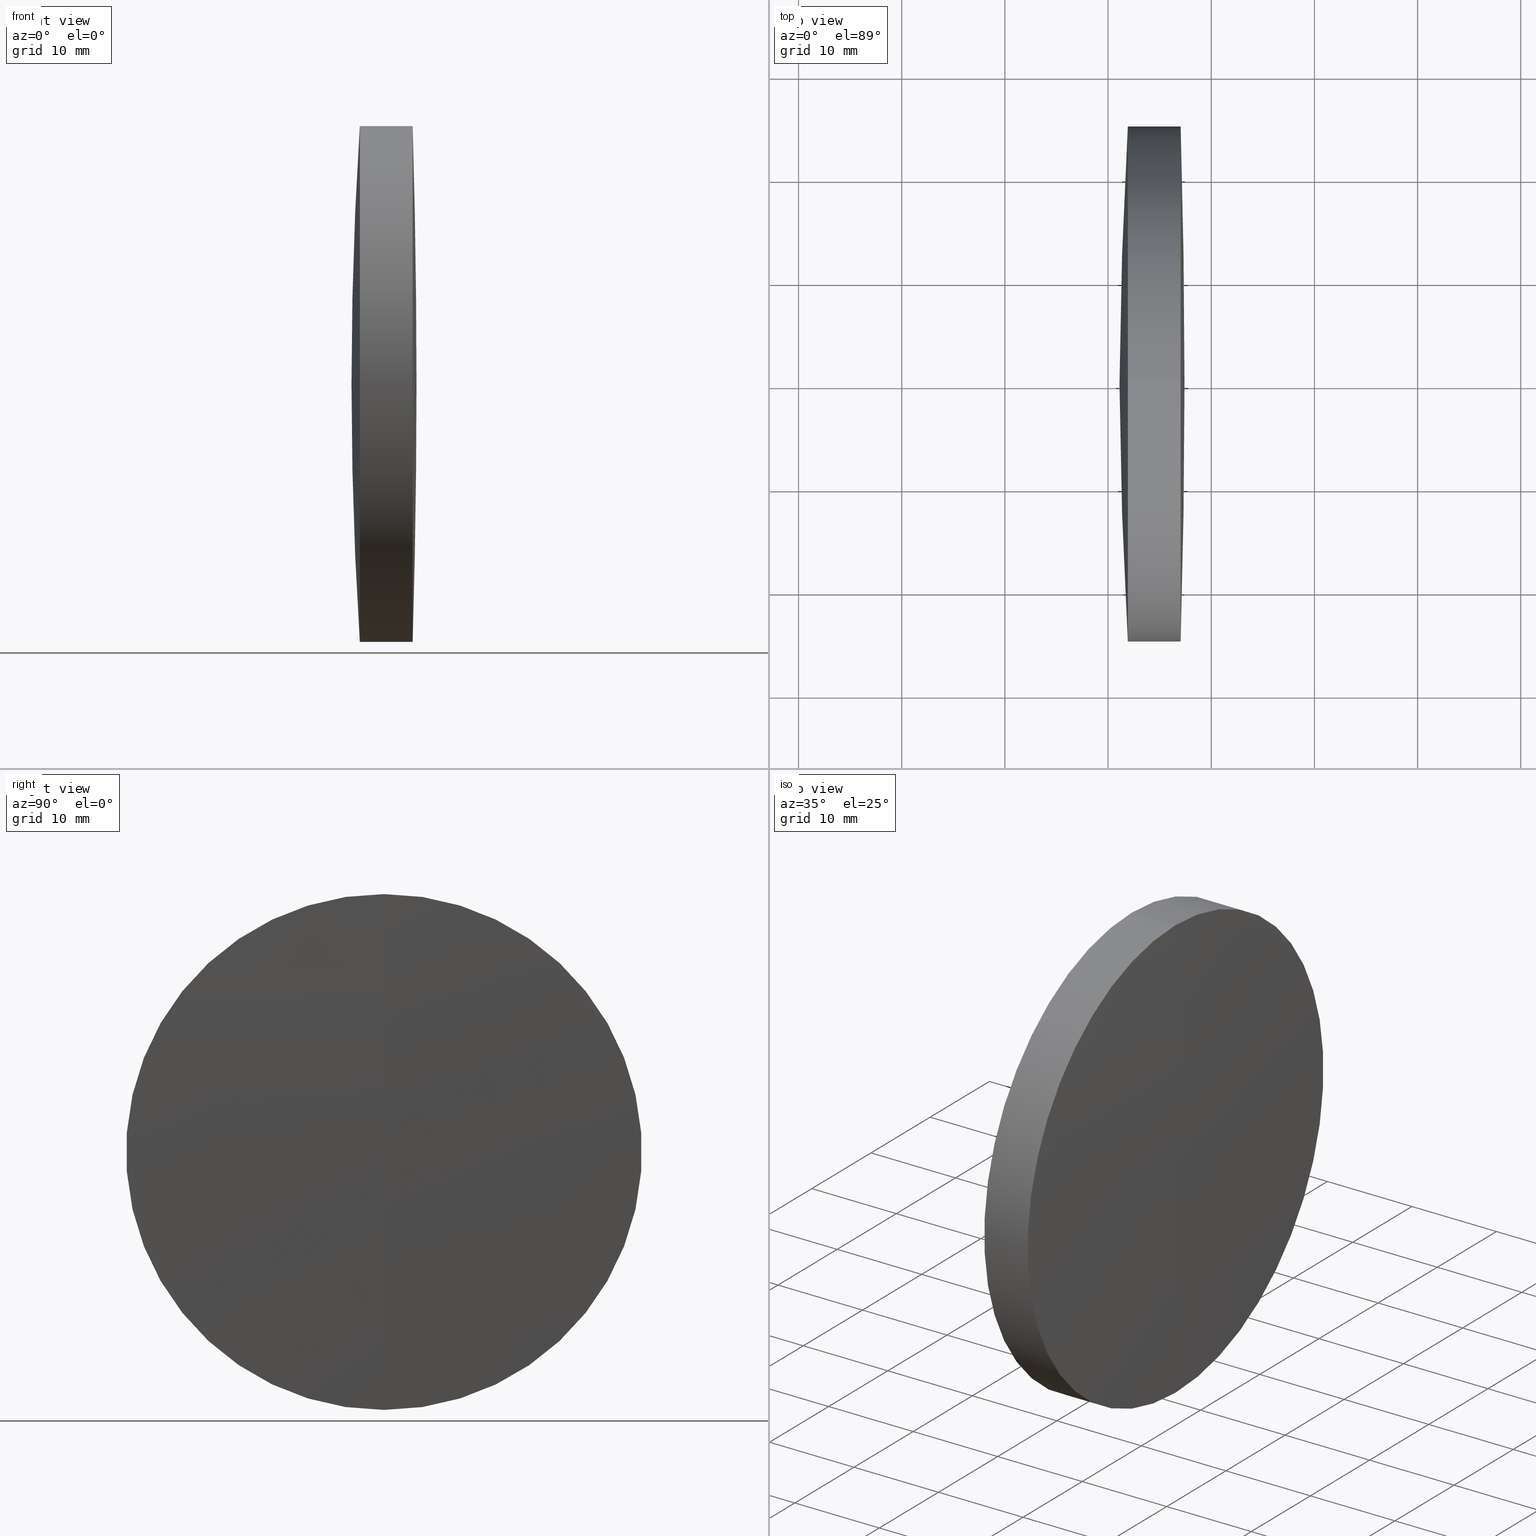
[diagram: canonical four-view strip — front | top / right | iso, engineering-drawing reading convention]
A machine part, canonical four-view strip (front | top / right | iso — engineering-drawing reading convention). The complete STEP part file that produces these views, byte-faithful:
ISO-10303-21;
HEADER;
FILE_DESCRIPTION (( 'STEP AP214' ),
    '1' );
FILE_NAME ('145083.STEP',
    '2019-05-16T05:57:50',
    ( 'user' ),
    ( '΢���й�' ),
    'SwSTEP 2.0',
    'SolidWorks 2016',
    '' );
FILE_SCHEMA (( 'AUTOMOTIVE_DESIGN' ));
ENDSEC;

DATA;
#1 = DIRECTION ( 'NONE',  ( 0.0000000000000000000, 0.0000000000000000000, 1.000000000000000000 ) ) ;
#2 = ORIENTED_EDGE ( 'NONE', *, *, #39, .F. ) ;
#3 = PRESENTATION_LAYER_ASSIGNMENT (  '', '', ( #273 ) ) ;
#4 = AXIS2_PLACEMENT_3D ( 'NONE', #80, #31, #322 ) ;
#5 = DIRECTION ( 'NONE',  ( 0.0000000000000000000, 1.000000000000000000, 0.0000000000000000000 ) ) ;
#6 = DIRECTION ( 'NONE',  ( -1.000000000000000000, -0.0000000000000000000, -0.0000000000000000000 ) ) ;
#7 = ADVANCED_FACE ( 'NONE', ( #203 ), #276, .T. ) ;
#8 = ORIENTED_EDGE ( 'NONE', *, *, #206, .F. ) ;
#9 = VECTOR ( 'NONE', #6, 1000.000000000000000 ) ;
#10 = ORIENTED_EDGE ( 'NONE', *, *, #87, .T. ) ;
#11 = CARTESIAN_POINT ( 'NONE',  ( 291.9150182122907000, 3.061616997868380700E-015, -25.00000000000035900 ) ) ;
#12 = DIRECTION ( 'NONE',  ( 0.0000000000000000000, 0.0000000000000000000, 1.000000000000000000 ) ) ;
#13 = LINE ( 'NONE', #255, #82 ) ;
#14 = COLOUR_RGB ( '',1.000000000000000000, 1.000000000000000000, 1.000000000000000000 ) ;
#15 = CARTESIAN_POINT ( 'NONE',  ( 293.6613078278429600, 3.061616997868389000E-015, -25.00000000000005000 ) ) ;
#16 = ORIENTED_EDGE ( 'NONE', *, *, #216, .T. ) ;
#17 = ORIENTED_EDGE ( 'NONE', *, *, #44, .T. ) ;
#18 =( NAMED_UNIT ( * ) SI_UNIT ( $, .STERADIAN. ) SOLID_ANGLE_UNIT ( ) );
#19 = DIRECTION ( 'NONE',  ( 0.0000000000000000000, 0.0000000000000000000, -1.000000000000000000 ) ) ;
#20 = CYLINDRICAL_SURFACE ( 'NONE', #282, 25.00000000000005000 ) ;
#21 = AXIS2_PLACEMENT_3D ( 'NONE', #281, #174, #295 ) ;
#22 = DIRECTION ( 'NONE',  ( 0.0000000000000000000, 0.0000000000000000000, 1.000000000000000000 ) ) ;
#23 = ORIENTED_EDGE ( 'NONE', *, *, #157, .F. ) ;
#24 = EDGE_LOOP ( 'NONE', ( #217, #75, #70, #23 ) ) ;
#25 = FILL_AREA_STYLE ('',( #136 ) ) ;
#26 = SPHERICAL_SURFACE ( 'NONE', #210, 387.7020000000000000 ) ;
#27 = CLOSED_SHELL ( 'NONE', ( #346, #220, #332, #110, #204, #115 ) ) ;
#28 = LINE ( 'NONE', #209, #122 ) ;
#29 = SPHERICAL_SURFACE ( 'NONE', #243, 840.6970000000000000 ) ;
#30 = FACE_OUTER_BOUND ( 'NONE', #328, .T. ) ;
#31 = DIRECTION ( 'NONE',  ( -1.000000000000000000, -0.0000000000000000000, -0.0000000000000000000 ) ) ;
#32 = ORIENTED_EDGE ( 'NONE', *, *, #343, .T. ) ;
#33 = ADVANCED_FACE ( 'NONE', ( #275 ), #29, .T. ) ;
#34 = EDGE_CURVE ( 'NONE', #109, #108, #173, .T. ) ;
#35 = DIRECTION ( 'NONE',  ( 0.0000000000000000000, 1.000000000000000000, 0.0000000000000000000 ) ) ;
#36 = CIRCLE ( 'NONE', #4, 24.99999999999984400 ) ;
#37 = DIRECTION ( 'NONE',  ( -1.000000000000000000, -0.0000000000000000000, -0.0000000000000000000 ) ) ;
#38 = ORIENTED_EDGE ( 'NONE', *, *, #206, .T. ) ;
#39 = EDGE_CURVE ( 'NONE', #251, #142, #306, .T. ) ;
#40 = CARTESIAN_POINT ( 'NONE',  ( 0.0000000000000000000, 0.0000000000000000000, 0.0000000000000000000 ) ) ;
#41 =( NAMED_UNIT ( * ) PLANE_ANGLE_UNIT ( ) SI_UNIT ( $, .RADIAN. ) );
#42 = EDGE_CURVE ( 'NONE', #109, #92, #91, .T. ) ;
#43 = CIRCLE ( 'NONE', #172, 24.99999999999932500 ) ;
#44 = EDGE_CURVE ( 'NONE', #154, #258, #221, .T. ) ;
#45 =( GEOMETRIC_REPRESENTATION_CONTEXT ( 3 ) GLOBAL_UNCERTAINTY_ASSIGNED_CONTEXT ( ( #304 ) ) GLOBAL_UNIT_ASSIGNED_CONTEXT ( ( #50, #268, #18 ) ) REPRESENTATION_CONTEXT ( 'NONE', 'WORKASPACE' ) );
#46 = CARTESIAN_POINT ( 'NONE',  ( 293.6613078278429600, 0.0000000000000000000, 0.0000000000000000000 ) ) ;
#47 = ORIENTED_EDGE ( 'NONE', *, *, #42, .T. ) ;
#48 = ORIENTED_EDGE ( 'NONE', *, *, #139, .F. ) ;
#49 = SURFACE_STYLE_FILL_AREA ( #269 ) ;
#50 =( LENGTH_UNIT ( ) NAMED_UNIT ( * ) SI_UNIT ( .MILLI., .METRE. ) );
#51 = CARTESIAN_POINT ( 'NONE',  ( 297.4081471606919500, 0.0000000000000000000, 5.147784450513912500E-014 ) ) ;
#52 = EDGE_LOOP ( 'NONE', ( #233, #17, #48 ) ) ;
#53 = ORIENTED_EDGE ( 'NONE', *, *, #192, .F. ) ;
#54 = PRESENTATION_STYLE_ASSIGNMENT (( #147 ) ) ;
#55 = DIRECTION ( 'NONE',  ( 0.0000000000000000000, 1.000000000000000000, 0.0000000000000000000 ) ) ;
#56 = FACE_OUTER_BOUND ( 'NONE', #52, .T. ) ;
#57 = AXIS2_PLACEMENT_3D ( 'NONE', #90, #262, #190 ) ;
#58 = CARTESIAN_POINT ( 'NONE',  ( 124.5233095260452400, 0.0000000000000000000, 25.00000000000005000 ) ) ;
#59 = ADVANCED_FACE ( 'NONE', ( #171 ), #102, .F. ) ;
#60 = CARTESIAN_POINT ( 'NONE',  ( 39.55514716069188800, 0.0000000000000000000, 3.293916324347987600E-013 ) ) ;
#61 = DIRECTION ( 'NONE',  ( 0.0000000000000000000, -1.224646799147353200E-016, 1.000000000000000000 ) ) ;
#62 = CLOSED_SHELL ( 'NONE', ( #33, #162, #59, #135, #7, #83 ) ) ;
#63 = AXIS2_PLACEMENT_3D ( 'NONE', #277, #73, #232 ) ;
#64 = CARTESIAN_POINT ( 'NONE',  ( 39.55514716069188800, 0.0000000000000000000, 3.293916324347987600E-013 ) ) ;
#65 = AXIS2_PLACEMENT_3D ( 'NONE', #46, #163, #253 ) ;
#66 = DIRECTION ( 'NONE',  ( 0.0000000000000000000, 1.000000000000000000, 0.0000000000000000000 ) ) ;
#67 = CIRCLE ( 'NONE', #127, 25.00000000000005000 ) ;
#68 = SURFACE_SIDE_STYLE ('',( #201 ) ) ;
#69 = DIRECTION ( 'NONE',  ( -1.000000000000000000, -0.0000000000000000000, -0.0000000000000000000 ) ) ;
#70 = ORIENTED_EDGE ( 'NONE', *, *, #343, .F. ) ;
#71 = CIRCLE ( 'NONE', #85, 255.3329999999999100 ) ;
#72 =( NAMED_UNIT ( * ) SI_UNIT ( $, .STERADIAN. ) SOLID_ANGLE_UNIT ( ) );
#73 = DIRECTION ( 'NONE',  ( 0.0000000000000000000, -1.000000000000000000, 0.0000000000000000000 ) ) ;
#74 = AXIS2_PLACEMENT_3D ( 'NONE', #60, #55, #334 ) ;
#75 = ORIENTED_EDGE ( 'NONE', *, *, #165, .T. ) ;
#76 = FACE_OUTER_BOUND ( 'NONE', #242, .T. ) ;
#77 = FACE_OUTER_BOUND ( 'NONE', #340, .T. ) ;
#78 = STYLED_ITEM ( 'NONE', ( #187 ), #134 ) ;
#79 = CARTESIAN_POINT ( 'NONE',  ( 293.6613078278429600, 0.0000000000000000000, 25.00000000000005000 ) ) ;
#80 = CARTESIAN_POINT ( 'NONE',  ( 293.6613078278429600, 0.0000000000000000000, 0.0000000000000000000 ) ) ;
#81 = CARTESIAN_POINT ( 'NONE',  ( 297.0363495728295200, 0.0000000000000000000, 0.0000000000000000000 ) ) ;
#82 = VECTOR ( 'NONE', #150, 1000.000000000000000 ) ;
#83 = ADVANCED_FACE ( 'NONE', ( #30 ), #293, .T. ) ;
#84 = ORIENTED_EDGE ( 'NONE', *, *, #169, .T. ) ;
#85 = AXIS2_PLACEMENT_3D ( 'NONE', #184, #198, #61 ) ;
#86 = CARTESIAN_POINT ( 'NONE',  ( 678.8101471606918300, 0.0000000000000000000, -3.757270790707711000E-013 ) ) ;
#87 = EDGE_CURVE ( 'NONE', #280, #230, #324, .T. ) ;
#88 = CARTESIAN_POINT ( 'NONE',  ( 293.6613078278429600, 3.061616997868377100E-015, -24.99999999999962700 ) ) ;
#89 = AXIS2_PLACEMENT_3D ( 'NONE', #256, #236, #182 ) ;
#90 = CARTESIAN_POINT ( 'NONE',  ( -543.2888528393081100, 0.0000000000000000000, 0.0000000000000000000 ) ) ;
#91 = CIRCLE ( 'NONE', #89, 840.6970000000000000 ) ;
#92 = VERTEX_POINT ( 'NONE', #245 ) ;
#93 = SURFACE_SIDE_STYLE ('',( #49 ) ) ;
#94 =( NAMED_UNIT ( * ) SI_UNIT ( $, .STERADIAN. ) SOLID_ANGLE_UNIT ( ) );
#95 = CARTESIAN_POINT ( 'NONE',  ( 294.8881471606918000, 0.0000000000000000000, 3.450262694931332900E-013 ) ) ;
#96 = PRESENTATION_LAYER_ASSIGNMENT (  '', '', ( #78 ) ) ;
#97 = DIRECTION ( 'NONE',  ( -1.000000000000000000, -0.0000000000000000000, -0.0000000000000000000 ) ) ;
#98 =( NAMED_UNIT ( * ) PLANE_ANGLE_UNIT ( ) SI_UNIT ( $, .RADIAN. ) );
#99 = ORIENTED_EDGE ( 'NONE', *, *, #287, .F. ) ;
#100 = AXIS2_PLACEMENT_3D ( 'NONE', #314, #35, #1 ) ;
#101 = CARTESIAN_POINT ( 'NONE',  ( -0.5519199926577972300, 0.0000000000000000000, 0.0000000000000000000 ) ) ;
#102 = SPHERICAL_SURFACE ( 'NONE', #74, 255.3329999999999700 ) ;
#103 = COLOUR_RGB ( '',1.000000000000000000, 1.000000000000000000, 1.000000000000000000 ) ;
#104 =( LENGTH_UNIT ( ) NAMED_UNIT ( * ) SI_UNIT ( .MILLI., .METRE. ) );
#105 = ORIENTED_EDGE ( 'NONE', *, *, #44, .F. ) ;
#106 = DIRECTION ( 'NONE',  ( 0.0000000000000000000, 1.000000000000000000, 0.0000000000000000000 ) ) ;
#107 = CARTESIAN_POINT ( 'NONE',  ( 678.8101471606918300, 0.0000000000000000000, -3.757270790707711000E-013 ) ) ;
#108 = VERTEX_POINT ( 'NONE', #305 ) ;
#109 = VERTEX_POINT ( 'NONE', #51 ) ;
#110 = ADVANCED_FACE ( 'NONE', ( #284 ), #26, .T. ) ;
#111 = ORIENTED_EDGE ( 'NONE', *, *, #165, .F. ) ;
#112 = VERTEX_POINT ( 'NONE', #234 ) ;
#113 = CARTESIAN_POINT ( 'NONE',  ( 291.9150182122907000, 0.0000000000000000000, 0.0000000000000000000 ) ) ;
#114 = PRODUCT_DEFINITION_SHAPE ( 'NONE', 'NONE',  #309 ) ;
#115 = ADVANCED_FACE ( 'NONE', ( #56 ), #126, .T. ) ;
#116 = MECHANICAL_DESIGN_GEOMETRIC_PRESENTATION_REPRESENTATION (  '', ( #78 ), #45 ) ;
#117 = ORIENTED_EDGE ( 'NONE', *, *, #287, .T. ) ;
#118 = CARTESIAN_POINT ( 'NONE',  ( 291.9150182122907000, 0.0000000000000000000, 0.0000000000000000000 ) ) ;
#119 = ORIENTED_EDGE ( 'NONE', *, *, #144, .F. ) ;
#120 = CARTESIAN_POINT ( 'NONE',  ( 293.6613078278429600, 0.0000000000000000000, 0.0000000000000000000 ) ) ;
#121 = AXIS2_PLACEMENT_3D ( 'NONE', #193, #344, #19 ) ;
#122 = VECTOR ( 'NONE', #289, 1000.000000000000000 ) ;
#123 = DIRECTION ( 'NONE',  ( 0.0000000000000000000, 1.000000000000000000, 0.0000000000000000000 ) ) ;
#124 = CARTESIAN_POINT ( 'NONE',  ( -0.5519199926577972300, 0.0000000000000000000, 0.0000000000000000000 ) ) ;
#125 = CARTESIAN_POINT ( 'NONE',  ( 124.5233095260452400, 0.0000000000000000000, 0.0000000000000000000 ) ) ;
#126 = SPHERICAL_SURFACE ( 'NONE', #235, 255.3329999999999100 ) ;
#127 = AXIS2_PLACEMENT_3D ( 'NONE', #197, #341, #238 ) ;
#128 = DIRECTION ( 'NONE',  ( -1.000000000000000000, -0.0000000000000000000, -0.0000000000000000000 ) ) ;
#129 = DIRECTION ( 'NONE',  ( 0.0000000000000000000, 0.0000000000000000000, 1.000000000000000000 ) ) ;
#130 = SPHERICAL_SURFACE ( 'NONE', #100, 255.3329999999999700 ) ;
#131 = DIRECTION ( 'NONE',  ( 0.0000000000000000000, 0.0000000000000000000, 1.000000000000000000 ) ) ;
#132 =( GEOMETRIC_REPRESENTATION_CONTEXT ( 3 ) GLOBAL_UNCERTAINTY_ASSIGNED_CONTEXT ( ( #297 ) ) GLOBAL_UNIT_ASSIGNED_CONTEXT ( ( #316, #211, #140 ) ) REPRESENTATION_CONTEXT ( 'NONE', 'WORKASPACE' ) );
#133 = ORIENTED_EDGE ( 'NONE', *, *, #144, .T. ) ;
#134 = ADVANCED_BREP_SHAPE_REPRESENTATION ( '145083', ( #148, #228, #288 ), #132 ) ;
#135 = ADVANCED_FACE ( 'NONE', ( #331 ), #130, .F. ) ;
#136 = FILL_AREA_STYLE_COLOUR ( '', #312 ) ;
#137 = DIRECTION ( 'NONE',  ( -1.000000000000000000, -0.0000000000000000000, -0.0000000000000000000 ) ) ;
#138 = EDGE_LOOP ( 'NONE', ( #105, #145, #260 ) ) ;
#139 = EDGE_CURVE ( 'NONE', #159, #258, #67, .T. ) ;
#140 =( NAMED_UNIT ( * ) SI_UNIT ( $, .STERADIAN. ) SOLID_ANGLE_UNIT ( ) );
#141 = DIRECTION ( 'NONE',  ( 0.0000000000000000000, 0.0000000000000000000, 1.000000000000000000 ) ) ;
#142 = VERTEX_POINT ( 'NONE', #257 ) ;
#143 = DIRECTION ( 'NONE',  ( 0.0000000000000000000, 1.000000000000000000, 0.0000000000000000000 ) ) ;
#144 = EDGE_CURVE ( 'NONE', #108, #92, #43, .T. ) ;
#145 = ORIENTED_EDGE ( 'NONE', *, *, #170, .T. ) ;
#146 = EDGE_CURVE ( 'NONE', #258, #159, #249, .T. ) ;
#147 = SURFACE_STYLE_USAGE ( .BOTH. , #347 ) ;
#148 = MANIFOLD_SOLID_BREP ( '��ת1', #27 ) ;
#149 = ORIENTED_EDGE ( 'NONE', *, *, #192, .T. ) ;
#150 = DIRECTION ( 'NONE',  ( -1.000000000000000000, -0.0000000000000000000, -0.0000000000000000000 ) ) ;
#151 = AXIS2_PLACEMENT_3D ( 'NONE', #274, #303, #247 ) ;
#152 = FILL_AREA_STYLE_COLOUR ( '', #103 ) ;
#153 = DIRECTION ( 'NONE',  ( 0.0000000000000000000, -1.000000000000000000, 0.0000000000000000000 ) ) ;
#154 = VERTEX_POINT ( 'NONE', #95 ) ;
#155 = EDGE_CURVE ( 'NONE', #108, #142, #13, .T. ) ;
#156 = CARTESIAN_POINT ( 'NONE',  ( -0.5519199926577972300, 3.061616997868332200E-015, -24.99999999999958400 ) ) ;
#157 = EDGE_CURVE ( 'NONE', #258, #230, #271, .T. ) ;
#158 = FILL_AREA_STYLE ('',( #152 ) ) ;
#159 = VERTEX_POINT ( 'NONE', #15 ) ;
#160 = EDGE_LOOP ( 'NONE', ( #53, #117, #345, #2 ) ) ;
#161 = FACE_OUTER_BOUND ( 'NONE', #237, .T. ) ;
#162 = ADVANCED_FACE ( 'NONE', ( #76 ), #335, .T. ) ;
#163 = DIRECTION ( 'NONE',  ( -1.000000000000000000, -0.0000000000000000000, -0.0000000000000000000 ) ) ;
#164 = CARTESIAN_POINT ( 'NONE',  ( 291.9150182122907000, 0.0000000000000000000, 24.99999999999998600 ) ) ;
#165 = EDGE_CURVE ( 'NONE', #159, #280, #28, .T. ) ;
#166 = ORIENTED_EDGE ( 'NONE', *, *, #139, .T. ) ;
#167 = SHAPE_DEFINITION_REPRESENTATION ( #114, #134 ) ;
#168 = DIRECTION ( 'NONE',  ( 0.0000000000000000000, 0.0000000000000000000, 1.000000000000000000 ) ) ;
#169 = EDGE_CURVE ( 'NONE', #230, #112, #252, .T. ) ;
#170 = EDGE_CURVE ( 'NONE', #154, #159, #71, .T. ) ;
#171 = FACE_OUTER_BOUND ( 'NONE', #292, .T. ) ;
#172 = AXIS2_PLACEMENT_3D ( 'NONE', #294, #296, #131 ) ;
#173 = CIRCLE ( 'NONE', #63, 840.6970000000000000 ) ;
#174 = DIRECTION ( 'NONE',  ( -0.0000000000000000000, 1.000000000000000000, 1.224646799147353200E-016 ) ) ;
#175 =( GEOMETRIC_REPRESENTATION_CONTEXT ( 3 ) GLOBAL_UNCERTAINTY_ASSIGNED_CONTEXT ( ( #272 ) ) GLOBAL_UNIT_ASSIGNED_CONTEXT ( ( #104, #98, #72 ) ) REPRESENTATION_CONTEXT ( 'NONE', 'WORKASPACE' ) );
#176 = APPLICATION_PROTOCOL_DEFINITION ( 'draft international standard', 'automotive_design', 1998, #261 ) ;
#177 = EDGE_LOOP ( 'NONE', ( #212, #38, #183 ) ) ;
#178 = CIRCLE ( 'NONE', #194, 24.99999999999932500 ) ;
#179 = AXIS2_PLACEMENT_3D ( 'NONE', #101, #37, #168 ) ;
#180 = SURFACE_STYLE_USAGE ( .BOTH. , #68 ) ;
#181 = SURFACE_STYLE_FILL_AREA ( #158 ) ;
#182 = DIRECTION ( 'NONE',  ( 0.0000000000000000000, -1.224646799147353200E-016, 1.000000000000000000 ) ) ;
#183 = ORIENTED_EDGE ( 'NONE', *, *, #224, .T. ) ;
#184 = CARTESIAN_POINT ( 'NONE',  ( 39.55514716069188800, 0.0000000000000000000, 3.293916324347987600E-013 ) ) ;
#185 = DIRECTION ( 'NONE',  ( 0.0000000000000000000, 0.0000000000000000000, -1.000000000000000000 ) ) ;
#186 = CARTESIAN_POINT ( 'NONE',  ( 124.5233095260452400, 0.0000000000000000000, 0.0000000000000000000 ) ) ;
#187 = PRESENTATION_STYLE_ASSIGNMENT (( #214 ) ) ;
#188 = CARTESIAN_POINT ( 'NONE',  ( 39.55514716069188800, 0.0000000000000000000, 3.293916324347987600E-013 ) ) ;
#189 = ORIENTED_EDGE ( 'NONE', *, *, #169, .F. ) ;
#190 = DIRECTION ( 'NONE',  ( 0.0000000000000000000, 0.0000000000000000000, 1.000000000000000000 ) ) ;
#191 = SPHERICAL_SURFACE ( 'NONE', #267, 255.3329999999999100 ) ;
#192 = EDGE_CURVE ( 'NONE', #92, #251, #208, .T. ) ;
#193 = CARTESIAN_POINT ( 'NONE',  ( 39.55514716069188800, 0.0000000000000000000, 3.293916324347987600E-013 ) ) ;
#194 = AXIS2_PLACEMENT_3D ( 'NONE', #81, #299, #254 ) ;
#195 = FILL_AREA_STYLE_COLOUR ( '', #14 ) ;
#196 = VERTEX_POINT ( 'NONE', #207 ) ;
#197 = CARTESIAN_POINT ( 'NONE',  ( 293.6613078278429600, 0.0000000000000000000, 0.0000000000000000000 ) ) ;
#198 = DIRECTION ( 'NONE',  ( -0.0000000000000000000, 1.000000000000000000, 1.224646799147353200E-016 ) ) ;
#199 = EDGE_CURVE ( 'NONE', #280, #112, #337, .T. ) ;
#200 = DIRECTION ( 'NONE',  ( 0.0000000000000000000, 0.0000000000000000000, 1.000000000000000000 ) ) ;
#201 = SURFACE_STYLE_FILL_AREA ( #25 ) ;
#202 = SPHERICAL_SURFACE ( 'NONE', #229, 387.7020000000000000 ) ;
#203 = FACE_OUTER_BOUND ( 'NONE', #160, .T. ) ;
#204 = ADVANCED_FACE ( 'NONE', ( #161 ), #231, .T. ) ;
#205 = DIRECTION ( 'NONE',  ( 0.0000000000000000000, -1.000000000000000000, 0.0000000000000000000 ) ) ;
#206 = EDGE_CURVE ( 'NONE', #196, #142, #218, .T. ) ;
#207 = CARTESIAN_POINT ( 'NONE',  ( 294.8881471606919100, 0.0000000000000000000, 3.450262694931332900E-013 ) ) ;
#208 = LINE ( 'NONE', #156, #308 ) ;
#209 = CARTESIAN_POINT ( 'NONE',  ( 124.5233095260452400, 3.061616997868389000E-015, -25.00000000000005000 ) ) ;
#210 = AXIS2_PLACEMENT_3D ( 'NONE', #286, #106, #129 ) ;
#211 =( NAMED_UNIT ( * ) PLANE_ANGLE_UNIT ( ) SI_UNIT ( $, .RADIAN. ) );
#212 = ORIENTED_EDGE ( 'NONE', *, *, #216, .F. ) ;
#213 = AXIS2_PLACEMENT_3D ( 'NONE', #118, #338, #342 ) ;
#214 = SURFACE_STYLE_USAGE ( .BOTH. , #93 ) ;
#215 = ORIENTED_EDGE ( 'NONE', *, *, #39, .T. ) ;
#216 = EDGE_CURVE ( 'NONE', #196, #251, #227, .T. ) ;
#217 = ORIENTED_EDGE ( 'NONE', *, *, #146, .T. ) ;
#218 = CIRCLE ( 'NONE', #298, 255.3329999999999700 ) ;
#219 = MECHANICAL_DESIGN_GEOMETRIC_PRESENTATION_REPRESENTATION (  '', ( #273 ), #315 ) ;
#220 = ADVANCED_FACE ( 'NONE', ( #325 ), #20, .T. ) ;
#221 = CIRCLE ( 'NONE', #121, 255.3329999999999100 ) ;
#222 = CIRCLE ( 'NONE', #213, 25.00000000000005300 ) ;
#223 = DIRECTION ( 'NONE',  ( 0.0000000000000000000, 0.0000000000000000000, 1.000000000000000000 ) ) ;
#224 = EDGE_CURVE ( 'NONE', #142, #251, #36, .T. ) ;
#225 = AXIS2_PLACEMENT_3D ( 'NONE', #113, #291, #259 ) ;
#226 = ORIENTED_EDGE ( 'NONE', *, *, #157, .T. ) ;
#227 = CIRCLE ( 'NONE', #151, 255.3329999999999700 ) ;
#228 = MANIFOLD_SOLID_BREP ( '��ת3', #62 ) ;
#229 = AXIS2_PLACEMENT_3D ( 'NONE', #86, #5, #12 ) ;
#230 = VERTEX_POINT ( 'NONE', #164 ) ;
#231 = CYLINDRICAL_SURFACE ( 'NONE', #317, 25.00000000000005000 ) ;
#232 = DIRECTION ( 'NONE',  ( 0.0000000000000000000, 0.0000000000000000000, -1.000000000000000000 ) ) ;
#233 = ORIENTED_EDGE ( 'NONE', *, *, #170, .F. ) ;
#234 = CARTESIAN_POINT ( 'NONE',  ( 291.1081471606918900, 0.0000000000000000000, -3.519871784046197500E-013 ) ) ;
#235 = AXIS2_PLACEMENT_3D ( 'NONE', #188, #66, #200 ) ;
#236 = DIRECTION ( 'NONE',  ( -0.0000000000000000000, 1.000000000000000000, 1.224646799147353200E-016 ) ) ;
#237 = EDGE_LOOP ( 'NONE', ( #111, #166, #226, #300 ) ) ;
#238 = DIRECTION ( 'NONE',  ( 0.0000000000000000000, 0.0000000000000000000, 1.000000000000000000 ) ) ;
#239 = APPLICATION_PROTOCOL_DEFINITION ( 'draft international standard', 'automotive_design', 1998, #244 ) ;
#240 = UNCERTAINTY_MEASURE_WITH_UNIT (LENGTH_MEASURE( 1.000000000000000100E-005 ), #265, 'distance_accuracy_value', 'NONE');
#241 = DIRECTION ( 'NONE',  ( -1.000000000000000000, -0.0000000000000000000, -0.0000000000000000000 ) ) ;
#242 = EDGE_LOOP ( 'NONE', ( #133, #149, #270, #320 ) ) ;
#243 = AXIS2_PLACEMENT_3D ( 'NONE', #283, #123, #22 ) ;
#244 = APPLICATION_CONTEXT ( 'automotive_design' ) ;
#245 = CARTESIAN_POINT ( 'NONE',  ( 297.0363495728295200, 3.061616997868316400E-015, -24.99999999999932500 ) ) ;
#246 = MECHANICAL_DESIGN_GEOMETRIC_PRESENTATION_REPRESENTATION (  '', ( #336 ), #175 ) ;
#247 = DIRECTION ( 'NONE',  ( 0.0000000000000000000, -1.224646799147353200E-016, 1.000000000000000000 ) ) ;
#248 = EDGE_LOOP ( 'NONE', ( #323, #10, #84 ) ) ;
#249 = CIRCLE ( 'NONE', #65, 25.00000000000005000 ) ;
#250 = DIRECTION ( 'NONE',  ( 0.0000000000000000000, 0.0000000000000000000, -1.000000000000000000 ) ) ;
#251 = VERTEX_POINT ( 'NONE', #88 ) ;
#252 = CIRCLE ( 'NONE', #278, 387.7020000000000000 ) ;
#253 = DIRECTION ( 'NONE',  ( 0.0000000000000000000, 0.0000000000000000000, 1.000000000000000000 ) ) ;
#254 = DIRECTION ( 'NONE',  ( 0.0000000000000000000, 0.0000000000000000000, 1.000000000000000000 ) ) ;
#255 = CARTESIAN_POINT ( 'NONE',  ( -0.5519199926577972300, 0.0000000000000000000, 24.99999999999958400 ) ) ;
#256 = CARTESIAN_POINT ( 'NONE',  ( -543.2888528393081100, 0.0000000000000000000, 0.0000000000000000000 ) ) ;
#257 = CARTESIAN_POINT ( 'NONE',  ( 293.6613078278429600, 0.0000000000000000000, 24.99999999999995400 ) ) ;
#258 = VERTEX_POINT ( 'NONE', #79 ) ;
#259 = DIRECTION ( 'NONE',  ( 0.0000000000000000000, 0.0000000000000000000, 1.000000000000000000 ) ) ;
#260 = ORIENTED_EDGE ( 'NONE', *, *, #146, .F. ) ;
#261 = APPLICATION_CONTEXT ( 'automotive_design' ) ;
#262 = DIRECTION ( 'NONE',  ( 0.0000000000000000000, 1.000000000000000000, 0.0000000000000000000 ) ) ;
#263 = PRESENTATION_LAYER_ASSIGNMENT (  '', '', ( #336 ) ) ;
#264 = PRODUCT_DEFINITION_CONTEXT ( 'detailed design', #261, 'design' ) ;
#265 =( LENGTH_UNIT ( ) NAMED_UNIT ( * ) SI_UNIT ( .MILLI., .METRE. ) );
#266 = DIRECTION ( 'NONE',  ( 0.0000000000000000000, 0.0000000000000000000, 1.000000000000000000 ) ) ;
#267 = AXIS2_PLACEMENT_3D ( 'NONE', #313, #143, #223 ) ;
#268 =( NAMED_UNIT ( * ) PLANE_ANGLE_UNIT ( ) SI_UNIT ( $, .RADIAN. ) );
#269 = FILL_AREA_STYLE ('',( #195 ) ) ;
#270 = ORIENTED_EDGE ( 'NONE', *, *, #224, .F. ) ;
#271 = LINE ( 'NONE', #58, #9 ) ;
#272 = UNCERTAINTY_MEASURE_WITH_UNIT (LENGTH_MEASURE( 1.000000000000000100E-005 ), #104, 'distance_accuracy_value', 'NONE');
#273 = STYLED_ITEM ( 'NONE', ( #318 ), #148 ) ;
#274 = CARTESIAN_POINT ( 'NONE',  ( 39.55514716069188800, 0.0000000000000000000, 3.293916324347987600E-013 ) ) ;
#275 = FACE_OUTER_BOUND ( 'NONE', #330, .T. ) ;
#276 = CYLINDRICAL_SURFACE ( 'NONE', #179, 24.99999999999958400 ) ;
#277 = CARTESIAN_POINT ( 'NONE',  ( -543.2888528393081100, 0.0000000000000000000, 0.0000000000000000000 ) ) ;
#278 = AXIS2_PLACEMENT_3D ( 'NONE', #107, #205, #185 ) ;
#279 = AXIS2_PLACEMENT_3D ( 'NONE', #124, #241, #326 ) ;
#280 = VERTEX_POINT ( 'NONE', #11 ) ;
#281 = CARTESIAN_POINT ( 'NONE',  ( 678.8101471606918300, 0.0000000000000000000, -3.757270790707711000E-013 ) ) ;
#282 = AXIS2_PLACEMENT_3D ( 'NONE', #125, #137, #290 ) ;
#283 = CARTESIAN_POINT ( 'NONE',  ( -543.2888528393081100, 0.0000000000000000000, 0.0000000000000000000 ) ) ;
#284 = FACE_OUTER_BOUND ( 'NONE', #248, .T. ) ;
#285 = ORIENTED_EDGE ( 'NONE', *, *, #199, .T. ) ;
#286 = CARTESIAN_POINT ( 'NONE',  ( 678.8101471606918300, 0.0000000000000000000, -3.757270790707711000E-013 ) ) ;
#287 = EDGE_CURVE ( 'NONE', #92, #108, #178, .T. ) ;
#288 = AXIS2_PLACEMENT_3D ( 'NONE', #40, #141, #310 ) ;
#289 = DIRECTION ( 'NONE',  ( -1.000000000000000000, -0.0000000000000000000, -0.0000000000000000000 ) ) ;
#290 = DIRECTION ( 'NONE',  ( 0.0000000000000000000, 0.0000000000000000000, 1.000000000000000000 ) ) ;
#291 = DIRECTION ( 'NONE',  ( -1.000000000000000000, -0.0000000000000000000, -0.0000000000000000000 ) ) ;
#292 = EDGE_LOOP ( 'NONE', ( #8, #16, #215 ) ) ;
#293 = SPHERICAL_SURFACE ( 'NONE', #57, 840.6970000000000000 ) ;
#294 = CARTESIAN_POINT ( 'NONE',  ( 297.0363495728295200, 0.0000000000000000000, 0.0000000000000000000 ) ) ;
#295 = DIRECTION ( 'NONE',  ( 0.0000000000000000000, -1.224646799147353200E-016, 1.000000000000000000 ) ) ;
#296 = DIRECTION ( 'NONE',  ( -1.000000000000000000, -0.0000000000000000000, -0.0000000000000000000 ) ) ;
#297 = UNCERTAINTY_MEASURE_WITH_UNIT (LENGTH_MEASURE( 1.000000000000000100E-005 ), #316, 'distance_accuracy_value', 'NONE');
#298 = AXIS2_PLACEMENT_3D ( 'NONE', #64, #153, #250 ) ;
#299 = DIRECTION ( 'NONE',  ( -1.000000000000000000, -0.0000000000000000000, -0.0000000000000000000 ) ) ;
#300 = ORIENTED_EDGE ( 'NONE', *, *, #87, .F. ) ;
#301 = ORIENTED_EDGE ( 'NONE', *, *, #42, .F. ) ;
#302 = DIRECTION ( 'NONE',  ( 0.0000000000000000000, 0.0000000000000000000, 1.000000000000000000 ) ) ;
#303 = DIRECTION ( 'NONE',  ( -0.0000000000000000000, 1.000000000000000000, 1.224646799147353200E-016 ) ) ;
#304 = UNCERTAINTY_MEASURE_WITH_UNIT (LENGTH_MEASURE( 1.000000000000000100E-005 ), #50, 'distance_accuracy_value', 'NONE');
#305 = CARTESIAN_POINT ( 'NONE',  ( 297.0363495728295200, 0.0000000000000000000, 24.99999999999932500 ) ) ;
#306 = CIRCLE ( 'NONE', #321, 24.99999999999984400 ) ;
#307 = ORIENTED_EDGE ( 'NONE', *, *, #34, .T. ) ;
#308 = VECTOR ( 'NONE', #69, 1000.000000000000000 ) ;
#309 = PRODUCT_DEFINITION ( 'δ֪', '', #327, #264 ) ;
#310 = DIRECTION ( 'NONE',  ( 1.000000000000000000, 0.0000000000000000000, 0.0000000000000000000 ) ) ;
#311 = PRODUCT_CONTEXT ( 'NONE', #244, 'mechanical' ) ;
#312 = COLOUR_RGB ( '',1.000000000000000000, 1.000000000000000000, 1.000000000000000000 ) ;
#313 = CARTESIAN_POINT ( 'NONE',  ( 39.55514716069188800, 0.0000000000000000000, 3.293916324347987600E-013 ) ) ;
#314 = CARTESIAN_POINT ( 'NONE',  ( 39.55514716069188800, 0.0000000000000000000, 3.293916324347987600E-013 ) ) ;
#315 =( GEOMETRIC_REPRESENTATION_CONTEXT ( 3 ) GLOBAL_UNCERTAINTY_ASSIGNED_CONTEXT ( ( #240 ) ) GLOBAL_UNIT_ASSIGNED_CONTEXT ( ( #265, #41, #94 ) ) REPRESENTATION_CONTEXT ( 'NONE', 'WORKASPACE' ) );
#316 =( LENGTH_UNIT ( ) NAMED_UNIT ( * ) SI_UNIT ( .MILLI., .METRE. ) );
#317 = AXIS2_PLACEMENT_3D ( 'NONE', #186, #97, #302 ) ;
#318 = PRESENTATION_STYLE_ASSIGNMENT (( #180 ) ) ;
#319 = FACE_OUTER_BOUND ( 'NONE', #138, .T. ) ;
#320 = ORIENTED_EDGE ( 'NONE', *, *, #155, .F. ) ;
#321 = AXIS2_PLACEMENT_3D ( 'NONE', #120, #128, #266 ) ;
#322 = DIRECTION ( 'NONE',  ( 0.0000000000000000000, 0.0000000000000000000, 1.000000000000000000 ) ) ;
#323 = ORIENTED_EDGE ( 'NONE', *, *, #199, .F. ) ;
#324 = CIRCLE ( 'NONE', #225, 25.00000000000005300 ) ;
#325 = FACE_OUTER_BOUND ( 'NONE', #24, .T. ) ;
#326 = DIRECTION ( 'NONE',  ( 0.0000000000000000000, 0.0000000000000000000, 1.000000000000000000 ) ) ;
#327 = PRODUCT_DEFINITION_FORMATION_WITH_SPECIFIED_SOURCE ( '�κ�', '', #333, .NOT_KNOWN. ) ;
#328 = EDGE_LOOP ( 'NONE', ( #301, #307, #99 ) ) ;
#329 = ORIENTED_EDGE ( 'NONE', *, *, #34, .F. ) ;
#330 = EDGE_LOOP ( 'NONE', ( #329, #47, #119 ) ) ;
#331 = FACE_OUTER_BOUND ( 'NONE', #177, .T. ) ;
#332 = ADVANCED_FACE ( 'NONE', ( #77 ), #202, .T. ) ;
#333 = PRODUCT ( '145083', '145083', '', ( #311 ) ) ;
#334 = DIRECTION ( 'NONE',  ( 0.0000000000000000000, 0.0000000000000000000, 1.000000000000000000 ) ) ;
#335 = CYLINDRICAL_SURFACE ( 'NONE', #279, 24.99999999999958400 ) ;
#336 = STYLED_ITEM ( 'NONE', ( #54 ), #228 ) ;
#337 = CIRCLE ( 'NONE', #21, 387.7020000000000000 ) ;
#338 = DIRECTION ( 'NONE',  ( -1.000000000000000000, -0.0000000000000000000, -0.0000000000000000000 ) ) ;
#339 = PRODUCT_RELATED_PRODUCT_CATEGORY ( 'part', '', ( #333 ) ) ;
#340 = EDGE_LOOP ( 'NONE', ( #32, #285, #189 ) ) ;
#341 = DIRECTION ( 'NONE',  ( -1.000000000000000000, -0.0000000000000000000, -0.0000000000000000000 ) ) ;
#342 = DIRECTION ( 'NONE',  ( 0.0000000000000000000, 0.0000000000000000000, 1.000000000000000000 ) ) ;
#343 = EDGE_CURVE ( 'NONE', #230, #280, #222, .T. ) ;
#344 = DIRECTION ( 'NONE',  ( 0.0000000000000000000, -1.000000000000000000, 0.0000000000000000000 ) ) ;
#345 = ORIENTED_EDGE ( 'NONE', *, *, #155, .T. ) ;
#346 = ADVANCED_FACE ( 'NONE', ( #319 ), #191, .T. ) ;
#347 = SURFACE_SIDE_STYLE ('',( #181 ) ) ;
ENDSEC;
END-ISO-10303-21;
